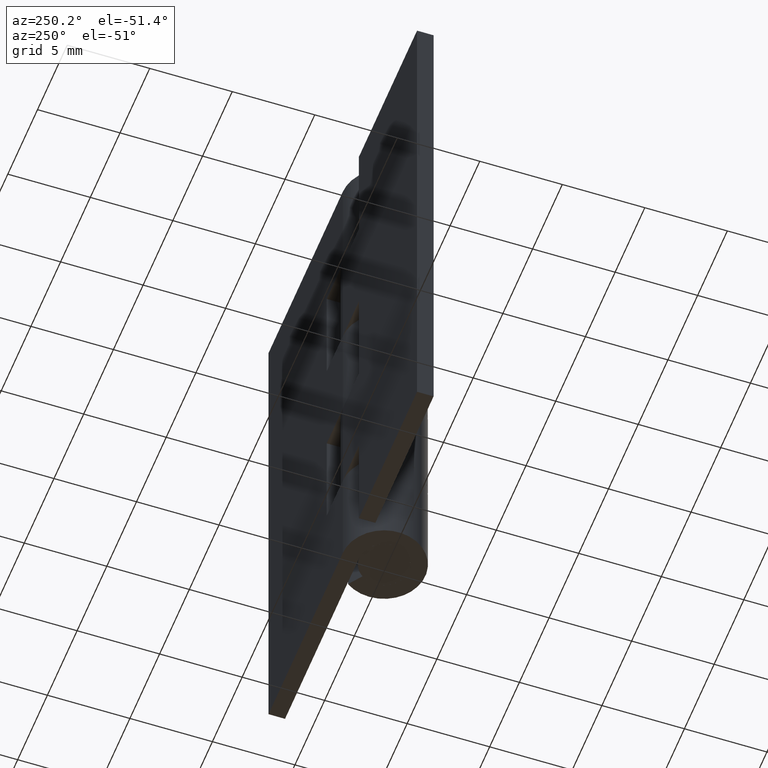
[diagram: clean part render]
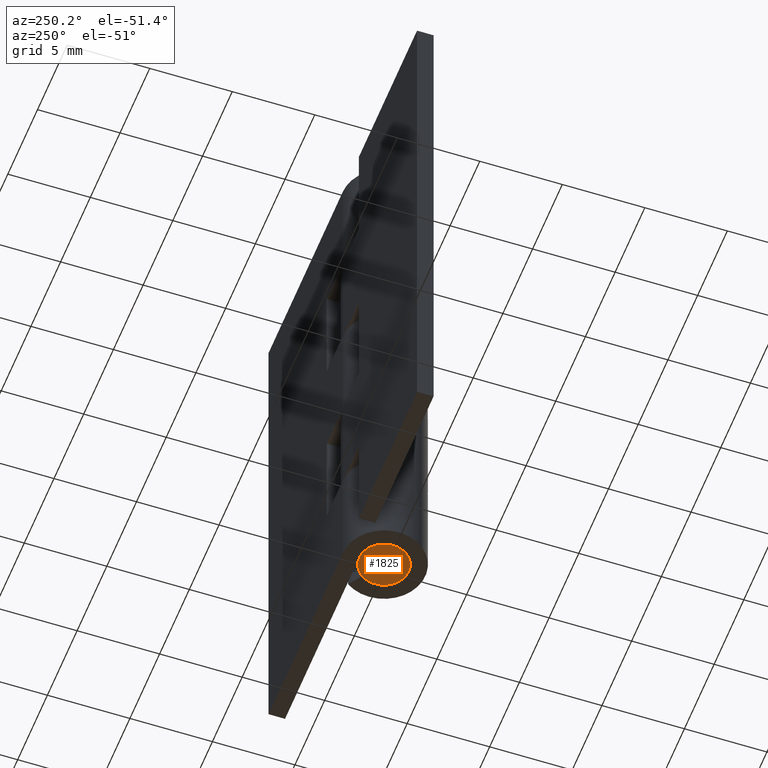
[diagram: same view with one face highlighted and labeled with its STEP entity id]
A machine part, auxiliary view. The second image highlights one B-rep face of the part: STEP entity #1825.
In plain terms, the highlighted face is a freeform B-spline surface patch.
Its self-contained STEP definition (entity closure, byte-faithful):
#1650=CARTESIAN_POINT('',(0.177051352070279,-1.489514289535379,1.646868E-015));
#1651=VERTEX_POINT('',#1650);
#1652=CARTESIAN_POINT('',(-1.500000000000000,0.0,0.0));
#1653=VERTEX_POINT('',#1652);
#1654=CARTESIAN_POINT('',(0.177051352070279,-1.489514289535380,1.646868E-015));
#1655=CARTESIAN_POINT('',(0.088836179563906,-1.500000000000000,0.0));
#1656=CARTESIAN_POINT('',(0.0,-1.500000000000000,0.0));
#1657=CARTESIAN_POINT('',(-1.500000000000000,-1.500000000000000,0.0));
#1658=CARTESIAN_POINT('',(-1.500000000000000,0.0,0.0));
#1666=(BOUNDED_CURVE()B_SPLINE_CURVE(2,(#1654,#1655,#1656,#1657,#1658),.UNSPECIFIED.,.F.,.U.)B_SPLINE_CURVE_WITH_KNOTS((3,2,3),(0.229562473496324,0.250000000000000,0.500000000000000),.UNSPECIFIED.)CURVE()GEOMETRIC_REPRESENTATION_ITEM()RATIONAL_B_SPLINE_CURVE((0.956026754150017,0.976055948311012,1.0,0.707106781186548,1.0))REPRESENTATION_ITEM(''));
#1667=EDGE_CURVE('',#1651,#1653,#1666,.T.);
#1708=CARTESIAN_POINT('',(-0.091572809398665,1.497202197626905,-2.220446E-016));
#1709=VERTEX_POINT('',#1708);
#1715=CARTESIAN_POINT('',(-1.500000000000000,0.0,0.0));
#1716=CARTESIAN_POINT('',(-1.500000000000001,1.411059100176536,0.0));
#1717=CARTESIAN_POINT('',(-0.091572809398665,1.497202197626905,-2.220446E-016));
#1725=(BOUNDED_CURVE()B_SPLINE_CURVE(2,(#1715,#1716,#1717),.UNSPECIFIED.,.F.,.U.)B_SPLINE_CURVE_WITH_KNOTS((3,3),(0.500000000000000,0.739332962219754),.UNSPECIFIED.)CURVE()GEOMETRIC_REPRESENTATION_ITEM()RATIONAL_B_SPLINE_CURVE((1.0,0.719603993309192,0.976072041625592))REPRESENTATION_ITEM(''));
#1726=EDGE_CURVE('',#1653,#1709,#1725,.T.);
#1749=CARTESIAN_POINT('',(1.500000000000000,0.0,0.0));
#1750=VERTEX_POINT('',#1749);
#1751=CARTESIAN_POINT('',(1.500000000000000,0.0,0.0));
#1752=CARTESIAN_POINT('',(1.500000000000001,-1.332261788773674,0.0));
#1753=CARTESIAN_POINT('',(0.177051352070279,-1.489514289535380,1.646868E-015));
#1761=(BOUNDED_CURVE()B_SPLINE_CURVE(2,(#1751,#1752,#1753),.UNSPECIFIED.,.F.,.U.)B_SPLINE_CURVE_WITH_KNOTS((3,3),(0.0,0.229562473496324),.UNSPECIFIED.)CURVE()GEOMETRIC_REPRESENTATION_ITEM()RATIONAL_B_SPLINE_CURVE((1.0,0.731050832875536,0.956026754150017))REPRESENTATION_ITEM(''));
#1762=EDGE_CURVE('',#1750,#1651,#1761,.T.);
#1764=CARTESIAN_POINT('',(-0.091572809398665,1.497202197626906,-2.220446E-016));
#1765=CARTESIAN_POINT('',(-0.045829145044533,1.500000000000000,0.0));
#1766=CARTESIAN_POINT('',(0.0,1.500000000000000,0.0));
#1767=CARTESIAN_POINT('',(1.500000000000000,1.500000000000000,0.0));
#1768=CARTESIAN_POINT('',(1.500000000000000,0.0,0.0));
#1776=(BOUNDED_CURVE()B_SPLINE_CURVE(2,(#1764,#1765,#1766,#1767,#1768),.UNSPECIFIED.,.F.,.U.)B_SPLINE_CURVE_WITH_KNOTS((3,2,3),(0.739332962219754,0.750000000000000,1.0),.UNSPECIFIED.)CURVE()GEOMETRIC_REPRESENTATION_ITEM()RATIONAL_B_SPLINE_CURVE((0.976072041625591,0.987502787877356,1.0,0.707106781186548,1.0))REPRESENTATION_ITEM(''));
#1777=EDGE_CURVE('',#1709,#1750,#1776,.T.);
#1814=CARTESIAN_POINT('',(-1.649849994185418,-1.649822796803184,0.0));
#1815=CARTESIAN_POINT('',(1.649850074651688,-1.649822796803184,0.0));
#1816=CARTESIAN_POINT('',(-1.649849994185418,1.649813489537902,0.0));
#1817=CARTESIAN_POINT('',(1.649850074651688,1.649813489537902,0.0));
#1818=B_SPLINE_SURFACE_WITH_KNOTS('',1,1,((#1814,#1816),(#1815,#1817)),.UNSPECIFIED.,.F.,.F.,.U.,(2,2),(2,2),(0.0,3.299700068837106),(0.0,3.299636286341086),.UNSPECIFIED.);
#1819=ORIENTED_EDGE('',*,*,#1762,.T.);
#1820=ORIENTED_EDGE('',*,*,#1667,.T.);
#1821=ORIENTED_EDGE('',*,*,#1726,.T.);
#1822=ORIENTED_EDGE('',*,*,#1777,.T.);
#1823=EDGE_LOOP('',(#1819,#1820,#1821,#1822));
#1824=FACE_OUTER_BOUND('',#1823,.T.);
#1825=ADVANCED_FACE('',(#1824),#1818,.F.);